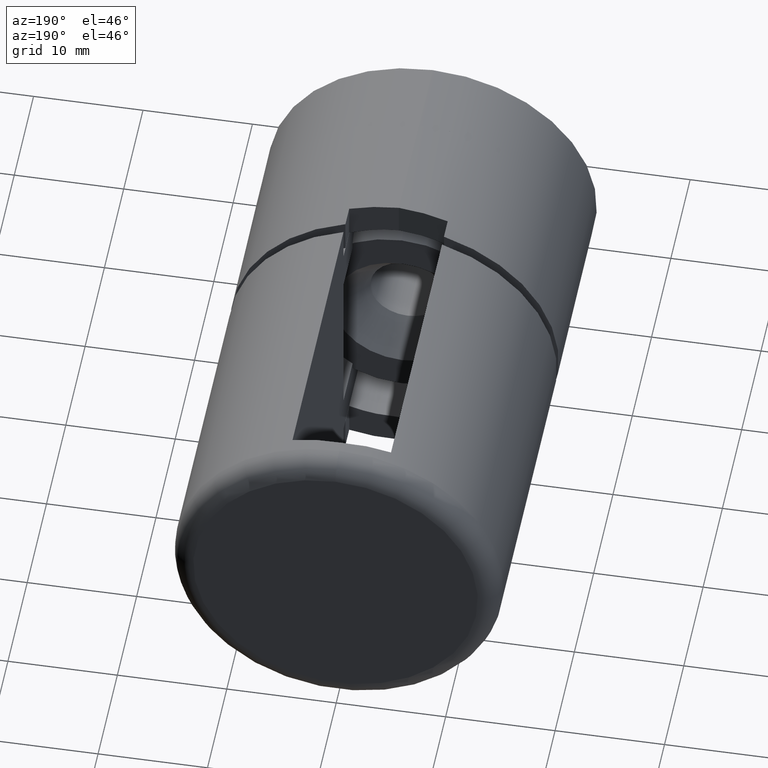
[diagram: clean part render]
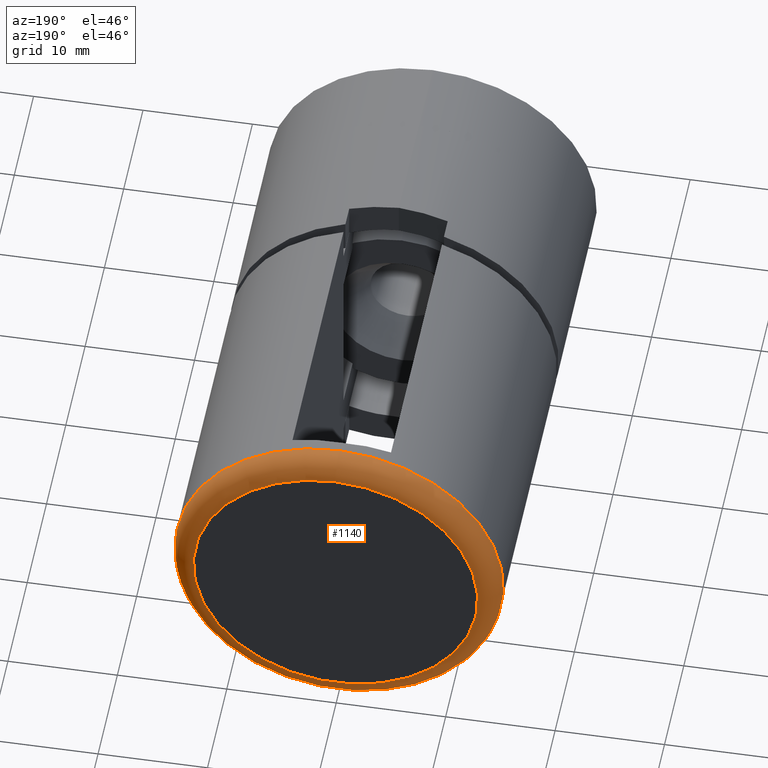
[diagram: same view with one face highlighted and labeled with its STEP entity id]
A machine part, auxiliary view. The second image highlights one B-rep face of the part: STEP entity #1140.
In plain terms, the highlighted toroidal blend (fillet) surface has major radius 13 mm and minor (blend) radius 2 mm.
Its self-contained STEP definition (entity closure, byte-faithful):
#1140 = ADVANCED_FACE ( 'NONE', ( #9801, #2660 ), #6656, .T. ) ;
#1708 = CARTESIAN_POINT ( 'NONE',  ( 0.0000000000000000000, 1.500000000000000000, -13.00000000000000000 ) ) ;
#1892 = EDGE_LOOP ( 'NONE', ( #12909 ) ) ;
#2561 = EDGE_LOOP ( 'NONE', ( #14437 ) ) ;
#2660 = FACE_OUTER_BOUND ( 'NONE', #1892, .T. ) ;
#3841 = AXIS2_PLACEMENT_3D ( 'NONE', #16993, #9020, #15732 ) ;
#3861 = VERTEX_POINT ( 'NONE', #1708 ) ;
#4528 = CARTESIAN_POINT ( 'NONE',  ( 0.0000000000000000000, 1.500000000000000000, 0.0000000000000000000 ) ) ;
#4623 = EDGE_CURVE ( 'NONE', #11800, #11800, #8357, .T. ) ;
#5101 = DIRECTION ( 'NONE',  ( -0.0000000000000000000, 1.000000000000000000, -0.0000000000000000000 ) ) ;
#6656 = TOROIDAL_SURFACE ( 'NONE', #3841, 13.00000000000000000, 2.000000000000000000 ) ;
#7071 = AXIS2_PLACEMENT_3D ( 'NONE', #14500, #5101, #15940 ) ;
#7256 = CARTESIAN_POINT ( 'NONE',  ( 0.0000000000000000000, 3.499999999999999600, -15.00000000000000000 ) ) ;
#8357 = CIRCLE ( 'NONE', #7071, 15.00000000000000000 ) ;
#9020 = DIRECTION ( 'NONE',  ( 0.0000000000000000000, -1.000000000000000000, 0.0000000000000000000 ) ) ;
#9801 = FACE_OUTER_BOUND ( 'NONE', #2561, .T. ) ;
#10141 = CIRCLE ( 'NONE', #13954, 13.00000000000000000 ) ;
#11122 = DIRECTION ( 'NONE',  ( 0.0000000000000000000, 0.0000000000000000000, -1.000000000000000000 ) ) ;
#11800 = VERTEX_POINT ( 'NONE', #7256 ) ;
#12397 = DIRECTION ( 'NONE',  ( 0.0000000000000000000, -1.000000000000000000, 0.0000000000000000000 ) ) ;
#12909 = ORIENTED_EDGE ( 'NONE', *, *, #17189, .F. ) ;
#13954 = AXIS2_PLACEMENT_3D ( 'NONE', #4528, #12397, #11122 ) ;
#14437 = ORIENTED_EDGE ( 'NONE', *, *, #4623, .F. ) ;
#14500 = CARTESIAN_POINT ( 'NONE',  ( 0.0000000000000000000, 3.499999999999999600, 0.0000000000000000000 ) ) ;
#15732 = DIRECTION ( 'NONE',  ( 0.0000000000000000000, 0.0000000000000000000, -1.000000000000000000 ) ) ;
#15940 = DIRECTION ( 'NONE',  ( 0.0000000000000000000, 0.0000000000000000000, -1.000000000000000000 ) ) ;
#16993 = CARTESIAN_POINT ( 'NONE',  ( 0.0000000000000000000, 3.499999999999999600, 0.0000000000000000000 ) ) ;
#17189 = EDGE_CURVE ( 'NONE', #3861, #3861, #10141, .T. ) ;